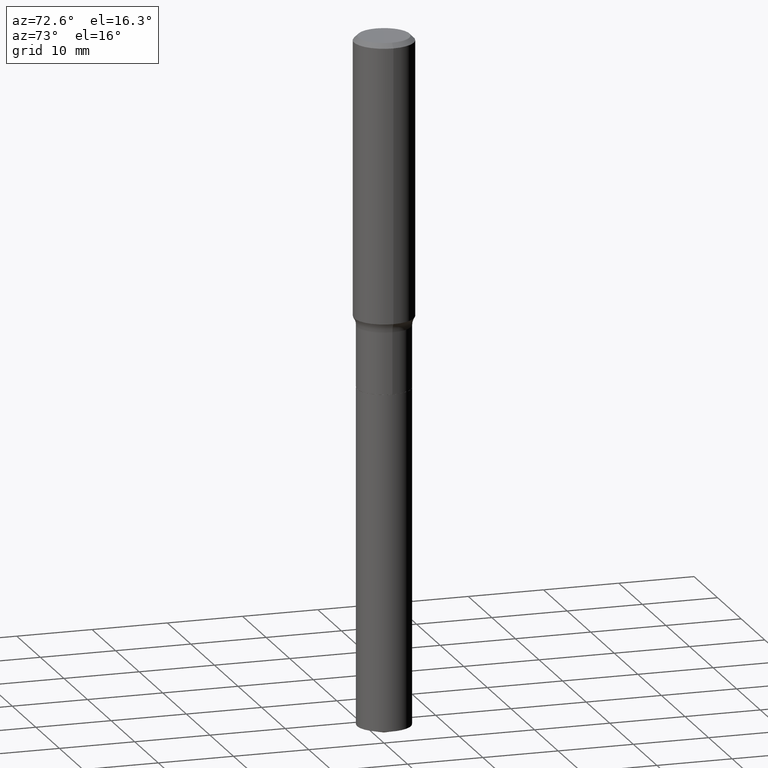
[diagram: clean part render]
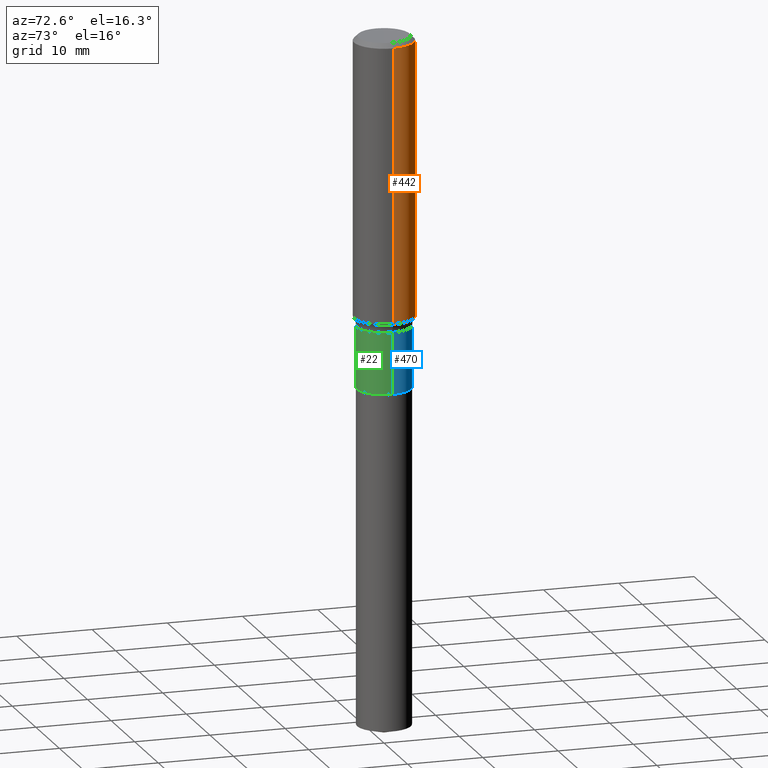
[diagram: same view with three faces highlighted in distinct colors, each labeled with its STEP entity id]
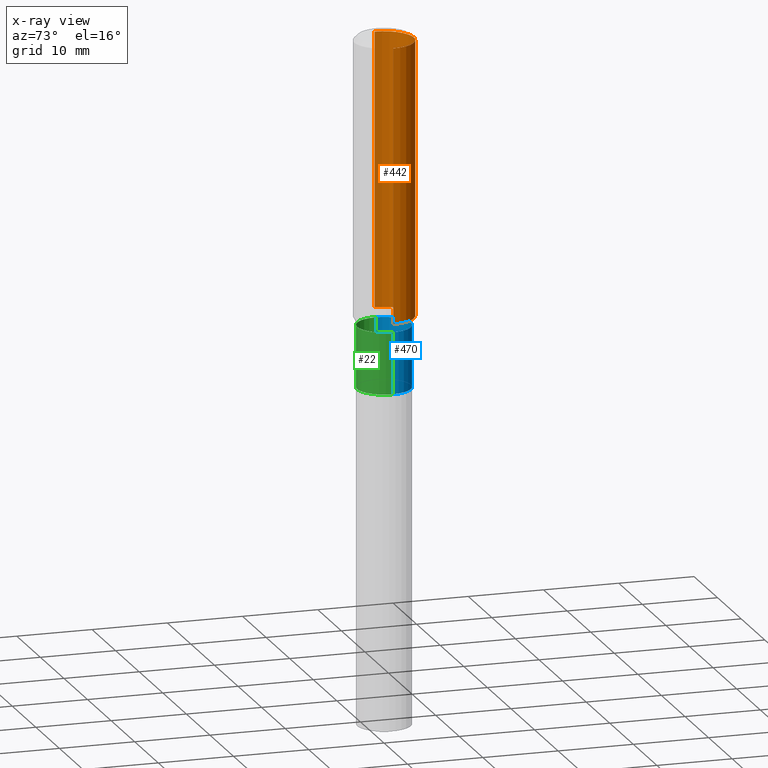
[diagram: x-ray of the same camera — body ghosted, the three highlighted faces saturated]
A machine part, auxiliary view with three faces highlighted in distinct colors.
The next image is the same camera in x-ray (body ghosted, the three faces saturated) — at least one of them is partly hidden behind the body in this view.
Their STEP definitions:

[orange] entity #442 — the highlighted cylindrical surface (edge-blend (fillet) strip) has radius 3.9688 mm, axis along (-0, 0, 1).
#2 = AXIS2_PLACEMENT_3D ( 'NONE', #50, #300, #312 ) ;
#8 = EDGE_CURVE ( 'NONE', #417, #154, #205, .T. ) ;
#21 = ORIENTED_EDGE ( 'NONE', *, *, #8, .F. ) ;
#30 = VECTOR ( 'NONE', #111, 39.37007874015748143 ) ;
#39 = CARTESIAN_POINT ( 'NONE',  ( 0.000000000000000000, 0.000000000000000000, 0.000000000000000000 ) ) ;
#45 = DIRECTION ( 'NONE',  ( 1.000000000000000000, -6.982962677686268288E-15, 0.000000000000000000 ) ) ;
#50 = CARTESIAN_POINT ( 'NONE',  ( 5.731567514496448931E-31, -8.183159387913672688E-17, -0.02343750000000014225 ) ) ;
#52 = CARTESIAN_POINT ( 'NONE',  ( 3.564761504764175574E-29, -5.089534669111730432E-15, -1.457700664898320175 ) ) ;
#57 = ORIENTED_EDGE ( 'NONE', *, *, #328, .T. ) ;
#71 = EDGE_CURVE ( 'NONE', #223, #191, #143, .T. ) ;
#111 = DIRECTION ( 'NONE',  ( -2.445468806185136877E-29, 3.491481338843145188E-15, 1.000000000000000000 ) ) ;
#113 = LINE ( 'NONE', #331, #30 ) ;
#143 = CIRCLE ( 'NONE', #203, 0.1562500000000001665 ) ;
#152 = ORIENTED_EDGE ( 'NONE', *, *, #71, .T. ) ;
#154 = VERTEX_POINT ( 'NONE', #410 ) ;
#168 = LINE ( 'NONE', #475, #457 ) ;
#191 = VERTEX_POINT ( 'NONE', #245 ) ;
#201 = DIRECTION ( 'NONE',  ( -2.445468806185136597E-29, 3.491481338843145583E-15, 1.000000000000000000 ) ) ;
#203 = AXIS2_PLACEMENT_3D ( 'NONE', #52, #201, #45 ) ;
#205 = CIRCLE ( 'NONE', #2, 0.1562500000000000000 ) ;
#223 = VERTEX_POINT ( 'NONE', #247 ) ;
#245 = CARTESIAN_POINT ( 'NONE',  ( -0.1562500000000002220, -3.979311644486573102E-15, -1.457700664898320175 ) ) ;
#247 = CARTESIAN_POINT ( 'NONE',  ( 0.1562500000000002220, -6.180622587500211183E-15, -1.457700664898320175 ) ) ;
#265 = DIRECTION ( 'NONE',  ( 1.000000000000000000, -6.982962677686266711E-15, 4.876176775795935232E-29 ) ) ;
#278 = EDGE_CURVE ( 'NONE', #223, #417, #168, .T. ) ;
#283 = EDGE_LOOP ( 'NONE', ( #152, #57, #21, #297 ) ) ;
#297 = ORIENTED_EDGE ( 'NONE', *, *, #278, .F. ) ;
#300 = DIRECTION ( 'NONE',  ( -2.445468806185136597E-29, 3.491481338843145583E-15, 1.000000000000000000 ) ) ;
#304 = CYLINDRICAL_SURFACE ( 'NONE', #487, 0.1562500000000000833 ) ;
#306 = DIRECTION ( 'NONE',  ( -2.445468806185136597E-29, 3.491481338843145583E-15, 1.000000000000000000 ) ) ;
#311 = CARTESIAN_POINT ( 'NONE',  ( 0.1562500000000000000, -1.172919512267615999E-15, -0.02343750000000014225 ) ) ;
#312 = DIRECTION ( 'NONE',  ( 1.000000000000000000, -6.982962677686266711E-15, 0.000000000000000000 ) ) ;
#321 = DIRECTION ( 'NONE',  ( -2.445468806185136877E-29, 3.491481338843145188E-15, 1.000000000000000000 ) ) ;
#328 = EDGE_CURVE ( 'NONE', #191, #154, #113, .T. ) ;
#331 = CARTESIAN_POINT ( 'NONE',  ( -0.1562500000000000833, 1.110223024625157132E-15, -7.685836078523293962E-30 ) ) ;
#410 = CARTESIAN_POINT ( 'NONE',  ( -0.1562500000000000000, -1.475460106870276299E-15, -0.02343750000000014225 ) ) ;
#417 = VERTEX_POINT ( 'NONE', #311 ) ;
#424 = FACE_OUTER_BOUND ( 'NONE', #283, .T. ) ;
#442 = ADVANCED_FACE ( 'NONE', ( #424 ), #304, .T. ) ;
#457 = VECTOR ( 'NONE', #321, 39.37007874015748143 ) ;
#475 = CARTESIAN_POINT ( 'NONE',  ( 0.1562500000000000833, -1.091087918388479765E-15, 7.619026212181153180E-30 ) ) ;
#487 = AXIS2_PLACEMENT_3D ( 'NONE', #39, #306, #265 ) ;

[blue] entity #470 — the highlighted cylindrical surface (edge-blend (fillet) strip) has radius 3.5687 mm, axis along (-0, 0, 1).
#3 = EDGE_LOOP ( 'NONE', ( #376, #480, #179, #437 ) ) ;
#6 = FACE_OUTER_BOUND ( 'NONE', #3, .T. ) ;
#10 = CYLINDRICAL_SURFACE ( 'NONE', #302, 0.1404999999999999860 ) ;
#40 = VERTEX_POINT ( 'NONE', #233 ) ;
#46 = AXIS2_PLACEMENT_3D ( 'NONE', #465, #344, #391 ) ;
#69 = AXIS2_PLACEMENT_3D ( 'NONE', #267, #341, #463 ) ;
#87 = VECTOR ( 'NONE', #339, 39.37007874015748143 ) ;
#107 = CARTESIAN_POINT ( 'NONE',  ( -0.1404999999999999860, -4.818669940836683896E-15, -1.504700000000000371 ) ) ;
#136 = CIRCLE ( 'NONE', #69, 0.1404999999999999860 ) ;
#179 = ORIENTED_EDGE ( 'NONE', *, *, #489, .F. ) ;
#184 = DIRECTION ( 'NONE',  ( -2.445468806185136877E-29, 3.491481338843145188E-15, 1.000000000000000000 ) ) ;
#209 = VERTEX_POINT ( 'NONE', #107 ) ;
#221 = LINE ( 'NONE', #372, #438 ) ;
#227 = VERTEX_POINT ( 'NONE', #282 ) ;
#233 = CARTESIAN_POINT ( 'NONE',  ( 0.1404999999999999860, -6.234738226772203181E-15, -1.504700000000000371 ) ) ;
#267 = CARTESIAN_POINT ( 'NONE',  ( 3.679696912666776556E-29, -5.253631970557282677E-15, -1.504700000000000371 ) ) ;
#282 = CARTESIAN_POINT ( 'NONE',  ( -0.1405000000000000138, -4.818669940836683896E-15, -1.827400000000000579 ) ) ;
#302 = AXIS2_PLACEMENT_3D ( 'NONE', #384, #389, #381 ) ;
#339 = DIRECTION ( 'NONE',  ( -2.445468806185136877E-29, 3.491481338843145188E-15, 1.000000000000000000 ) ) ;
#341 = DIRECTION ( 'NONE',  ( -2.445468806185136597E-29, 3.491481338843145583E-15, 1.000000000000000000 ) ) ;
#342 = EDGE_CURVE ( 'NONE', #227, #209, #221, .T. ) ;
#344 = DIRECTION ( 'NONE',  ( -2.445468806185136597E-29, 3.491481338843145583E-15, 1.000000000000000000 ) ) ;
#356 = CIRCLE ( 'NONE', #46, 0.1404999999999999860 ) ;
#372 = CARTESIAN_POINT ( 'NONE',  ( -0.1404999999999999860, 9.983125437429406618E-16, -6.911103801808141920E-30 ) ) ;
#375 = CARTESIAN_POINT ( 'NONE',  ( 0.1404999999999999860, -9.811062562149203072E-16, 6.851028369993288332E-30 ) ) ;
#376 = ORIENTED_EDGE ( 'NONE', *, *, #411, .T. ) ;
#381 = DIRECTION ( 'NONE',  ( 1.000000000000000000, -6.982962677686265922E-15, 4.876176775795935232E-29 ) ) ;
#384 = CARTESIAN_POINT ( 'NONE',  ( 0.000000000000000000, 0.000000000000000000, 0.000000000000000000 ) ) ;
#389 = DIRECTION ( 'NONE',  ( -2.445468806185136597E-29, 3.491481338843145583E-15, 1.000000000000000000 ) ) ;
#391 = DIRECTION ( 'NONE',  ( 1.000000000000000000, -6.982962677686267499E-15, 0.000000000000000000 ) ) ;
#398 = EDGE_CURVE ( 'NONE', #451, #40, #452, .T. ) ;
#411 = EDGE_CURVE ( 'NONE', #451, #227, #356, .T. ) ;
#437 = ORIENTED_EDGE ( 'NONE', *, *, #398, .F. ) ;
#438 = VECTOR ( 'NONE', #184, 39.37007874015748143 ) ;
#451 = VERTEX_POINT ( 'NONE', #461 ) ;
#452 = LINE ( 'NONE', #375, #87 ) ;
#461 = CARTESIAN_POINT ( 'NONE',  ( 0.1404999999999999860, -7.361439254816886550E-15, -1.827400000000000579 ) ) ;
#463 = DIRECTION ( 'NONE',  ( 1.000000000000000000, -6.982962677686267499E-15, 0.000000000000000000 ) ) ;
#465 = CARTESIAN_POINT ( 'NONE',  ( 4.468849696422719736E-29, -6.380332998601966045E-15, -1.827400000000000579 ) ) ;
#470 = ADVANCED_FACE ( 'NONE', ( #6 ), #10, .T. ) ;
#480 = ORIENTED_EDGE ( 'NONE', *, *, #342, .T. ) ;
#489 = EDGE_CURVE ( 'NONE', #40, #209, #136, .T. ) ;

[green] entity #22 — the highlighted cylindrical surface (edge-blend (fillet) strip) has radius 3.5687 mm, axis along (-0, 0, 1).
#7 = CARTESIAN_POINT ( 'NONE',  ( 0.000000000000000000, 0.000000000000000000, 0.000000000000000000 ) ) ;
#22 = ADVANCED_FACE ( 'NONE', ( #230 ), #237, .T. ) ;
#40 = VERTEX_POINT ( 'NONE', #233 ) ;
#56 = EDGE_CURVE ( 'NONE', #227, #451, #196, .T. ) ;
#76 = AXIS2_PLACEMENT_3D ( 'NONE', #7, #348, #119 ) ;
#87 = VECTOR ( 'NONE', #339, 39.37007874015748143 ) ;
#107 = CARTESIAN_POINT ( 'NONE',  ( -0.1404999999999999860, -4.818669940836683896E-15, -1.504700000000000371 ) ) ;
#108 = ORIENTED_EDGE ( 'NONE', *, *, #398, .T. ) ;
#119 = DIRECTION ( 'NONE',  ( 1.000000000000000000, -6.982962677686265922E-15, 4.876176775795935232E-29 ) ) ;
#129 = CARTESIAN_POINT ( 'NONE',  ( 3.679696912666776556E-29, -5.253631970557282677E-15, -1.504700000000000371 ) ) ;
#132 = EDGE_CURVE ( 'NONE', #209, #40, #288, .T. ) ;
#138 = ORIENTED_EDGE ( 'NONE', *, *, #342, .F. ) ;
#171 = AXIS2_PLACEMENT_3D ( 'NONE', #129, #426, #351 ) ;
#184 = DIRECTION ( 'NONE',  ( -2.445468806185136877E-29, 3.491481338843145188E-15, 1.000000000000000000 ) ) ;
#187 = ORIENTED_EDGE ( 'NONE', *, *, #56, .T. ) ;
#196 = CIRCLE ( 'NONE', #248, 0.1404999999999999860 ) ;
#209 = VERTEX_POINT ( 'NONE', #107 ) ;
#221 = LINE ( 'NONE', #372, #438 ) ;
#227 = VERTEX_POINT ( 'NONE', #282 ) ;
#230 = FACE_OUTER_BOUND ( 'NONE', #454, .T. ) ;
#233 = CARTESIAN_POINT ( 'NONE',  ( 0.1404999999999999860, -6.234738226772203181E-15, -1.504700000000000371 ) ) ;
#234 = CARTESIAN_POINT ( 'NONE',  ( 4.468849696422719736E-29, -6.380332998601966045E-15, -1.827400000000000579 ) ) ;
#237 = CYLINDRICAL_SURFACE ( 'NONE', #76, 0.1404999999999999860 ) ;
#248 = AXIS2_PLACEMENT_3D ( 'NONE', #234, #305, #308 ) ;
#282 = CARTESIAN_POINT ( 'NONE',  ( -0.1405000000000000138, -4.818669940836683896E-15, -1.827400000000000579 ) ) ;
#288 = CIRCLE ( 'NONE', #171, 0.1404999999999999860 ) ;
#305 = DIRECTION ( 'NONE',  ( -2.445468806185136597E-29, 3.491481338843145583E-15, 1.000000000000000000 ) ) ;
#308 = DIRECTION ( 'NONE',  ( 1.000000000000000000, -6.982962677686267499E-15, 0.000000000000000000 ) ) ;
#339 = DIRECTION ( 'NONE',  ( -2.445468806185136877E-29, 3.491481338843145188E-15, 1.000000000000000000 ) ) ;
#342 = EDGE_CURVE ( 'NONE', #227, #209, #221, .T. ) ;
#348 = DIRECTION ( 'NONE',  ( -2.445468806185136597E-29, 3.491481338843145583E-15, 1.000000000000000000 ) ) ;
#351 = DIRECTION ( 'NONE',  ( 1.000000000000000000, -6.982962677686267499E-15, 0.000000000000000000 ) ) ;
#372 = CARTESIAN_POINT ( 'NONE',  ( -0.1404999999999999860, 9.983125437429406618E-16, -6.911103801808141920E-30 ) ) ;
#374 = ORIENTED_EDGE ( 'NONE', *, *, #132, .F. ) ;
#375 = CARTESIAN_POINT ( 'NONE',  ( 0.1404999999999999860, -9.811062562149203072E-16, 6.851028369993288332E-30 ) ) ;
#398 = EDGE_CURVE ( 'NONE', #451, #40, #452, .T. ) ;
#426 = DIRECTION ( 'NONE',  ( -2.445468806185136597E-29, 3.491481338843145583E-15, 1.000000000000000000 ) ) ;
#438 = VECTOR ( 'NONE', #184, 39.37007874015748143 ) ;
#451 = VERTEX_POINT ( 'NONE', #461 ) ;
#452 = LINE ( 'NONE', #375, #87 ) ;
#454 = EDGE_LOOP ( 'NONE', ( #138, #187, #108, #374 ) ) ;
#461 = CARTESIAN_POINT ( 'NONE',  ( 0.1404999999999999860, -7.361439254816886550E-15, -1.827400000000000579 ) ) ;